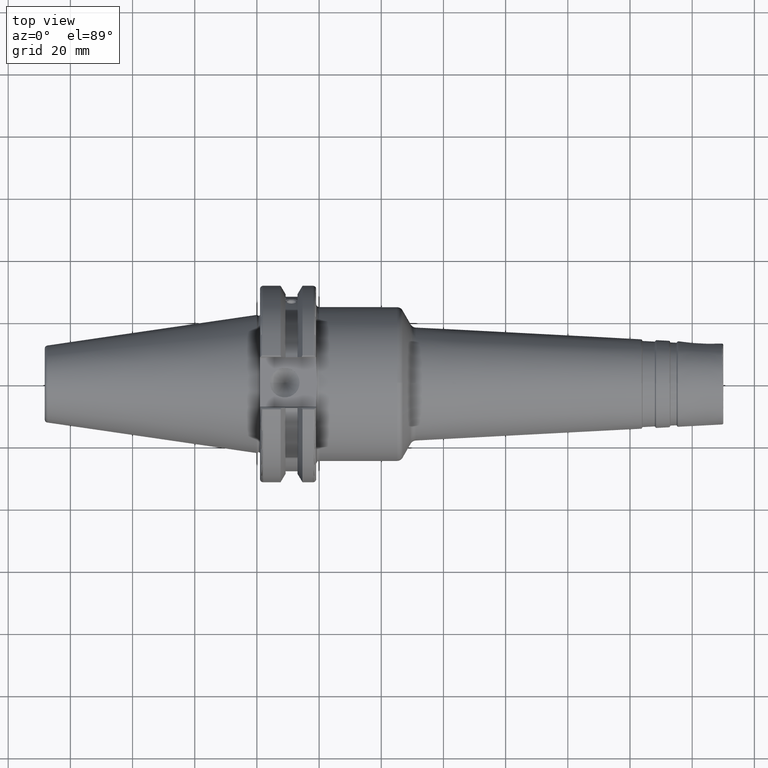
[diagram: clean part render]
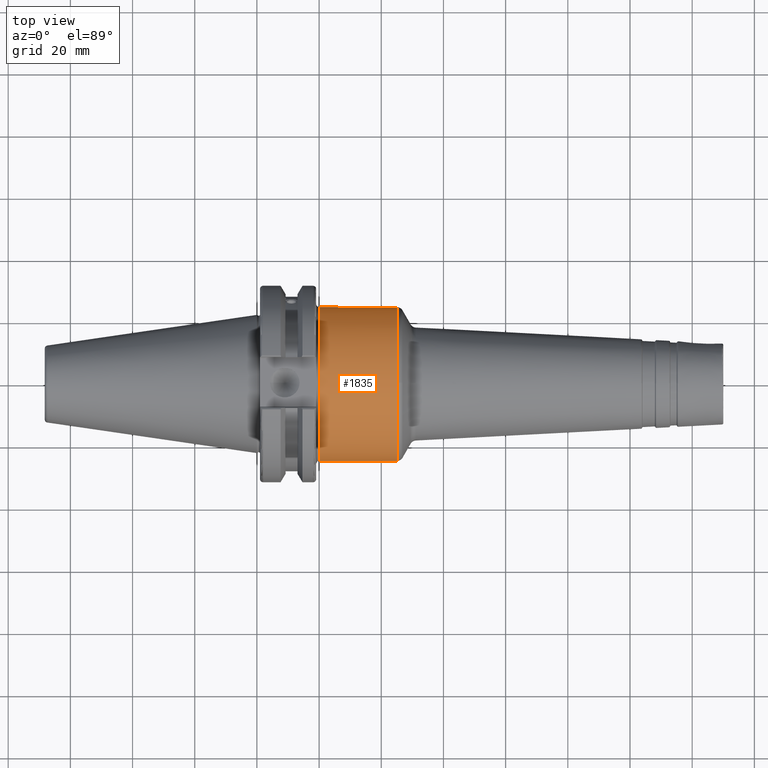
[diagram: same view with one face highlighted and labeled with its STEP entity id]
A machine part, top view. The second image highlights one B-rep face of the part: STEP entity #1835.
In plain terms, the highlighted cylindrical surface (bore or boss wall) has radius 24.75 mm, axis along (1, 0, 0).
Its self-contained STEP definition (entity closure, byte-faithful):
#145=B_SPLINE_CURVE_WITH_KNOTS('',3,(#2913,#2914,#2915,#2916,#2917,#2918,
#2919,#2920,#2921,#2922,#2923,#2924,#2925,#2926,#2927,#2928,#2929,#2930),
 .UNSPECIFIED.,.F.,.F.,(4,2,2,2,2,2,2,2,4),(-2.48845986202559,-2.17733241913027,
-1.86620497623495,-1.55521745362387,-1.24422993101279,-0.933242408401712,
-0.622254885790633,-0.311127442895316,0.),.UNSPECIFIED.);
#183=FACE_OUTER_BOUND('',#292,.T.);
#292=EDGE_LOOP('',(#1243,#1244,#1245,#1246,#1247,#1248,#1249));
#413=LINE('',#2941,#511);
#511=VECTOR('',#2250,24.75);
#610=CIRCLE('',#1974,24.75);
#611=CIRCLE('',#1975,24.75);
#612=CIRCLE('',#1976,24.75);
#613=CIRCLE('',#1977,24.75);
#738=VERTEX_POINT('',#2911);
#739=VERTEX_POINT('',#2912);
#742=VERTEX_POINT('',#2937);
#743=VERTEX_POINT('',#2938);
#744=VERTEX_POINT('',#2940);
#936=EDGE_CURVE('',#738,#739,#145,.T.);
#940=EDGE_CURVE('',#742,#743,#610,.T.);
#941=EDGE_CURVE('',#742,#744,#413,.T.);
#942=EDGE_CURVE('',#738,#744,#611,.T.);
#943=EDGE_CURVE('',#744,#739,#612,.T.);
#944=EDGE_CURVE('',#743,#742,#613,.T.);
#1243=ORIENTED_EDGE('',*,*,#940,.F.);
#1244=ORIENTED_EDGE('',*,*,#941,.T.);
#1245=ORIENTED_EDGE('',*,*,#942,.F.);
#1246=ORIENTED_EDGE('',*,*,#936,.T.);
#1247=ORIENTED_EDGE('',*,*,#943,.F.);
#1248=ORIENTED_EDGE('',*,*,#941,.F.);
#1249=ORIENTED_EDGE('',*,*,#944,.F.);
#1803=CYLINDRICAL_SURFACE('',#1973,24.75);
#1835=ADVANCED_FACE('',(#183),#1803,.T.);
#1973=AXIS2_PLACEMENT_3D('',#2936,#2246,#2247);
#1974=AXIS2_PLACEMENT_3D('',#2939,#2248,#2249);
#1975=AXIS2_PLACEMENT_3D('',#2942,#2251,#2252);
#1976=AXIS2_PLACEMENT_3D('',#2943,#2253,#2254);
#1977=AXIS2_PLACEMENT_3D('',#2944,#2255,#2256);
#2246=DIRECTION('center_axis',(1.,0.,0.));
#2247=DIRECTION('ref_axis',(0.,1.,0.));
#2248=DIRECTION('center_axis',(1.,0.,0.));
#2249=DIRECTION('ref_axis',(0.,-1.,1.83697019872103E-16));
#2250=DIRECTION('',(-1.,0.,0.));
#2251=DIRECTION('center_axis',(-1.,0.,0.));
#2252=DIRECTION('ref_axis',(0.,6.12323399573677E-17,1.));
#2253=DIRECTION('center_axis',(-1.,0.,0.));
#2254=DIRECTION('ref_axis',(0.,6.12323399573677E-17,1.));
#2255=DIRECTION('center_axis',(1.,0.,0.));
#2256=DIRECTION('ref_axis',(0.,-1.,1.83697019872103E-16));
#2911=CARTESIAN_POINT('',(20.05,-8.19,-23.3556502799644));
#2912=CARTESIAN_POINT('',(20.05,8.18999999999999,-23.3556502799644));
#2913=CARTESIAN_POINT('Ctrl Pts',(20.05,-8.19,-23.3556502799644));
#2914=CARTESIAN_POINT('Ctrl Pts',(21.0870914763177,-8.19,-23.3556502799644));
#2915=CARTESIAN_POINT('Ctrl Pts',(22.1874172494719,-7.98112852617488,-23.4319820145953));
#2916=CARTESIAN_POINT('Ctrl Pts',(24.2026226557734,-7.14301766428651,-23.7009173446597));
#2917=CARTESIAN_POINT('Ctrl Pts',(25.1182638848105,-6.51414519102515,-23.8889373554493));
#2918=CARTESIAN_POINT('Ctrl Pts',(26.563820070037,-5.06858900579863,-24.2368381566145));
#2919=CARTESIAN_POINT('Ctrl Pts',(27.1929429534371,-4.15281808103606,-24.420258379043));
#2920=CARTESIAN_POINT('Ctrl Pts',(28.0312404144778,-2.13713243178097,-24.6784841969774));
#2921=CARTESIAN_POINT('Ctrl Pts',(28.24,-1.03662507537027,-24.75));
#2922=CARTESIAN_POINT('Ctrl Pts',(28.24,1.03662507537027,-24.75));
#2923=CARTESIAN_POINT('Ctrl Pts',(28.0312404144778,2.13713243178098,-24.6784841969774));
#2924=CARTESIAN_POINT('Ctrl Pts',(27.1929429534371,4.15281808103607,-24.420258379043));
#2925=CARTESIAN_POINT('Ctrl Pts',(26.563820070037,5.06858900579863,-24.2368381566145));
#2926=CARTESIAN_POINT('Ctrl Pts',(25.1182638848105,6.51414519102515,-23.8889373554493));
#2927=CARTESIAN_POINT('Ctrl Pts',(24.2026226557734,7.14301766428652,-23.7009173446597));
#2928=CARTESIAN_POINT('Ctrl Pts',(22.1874172494719,7.98112852617489,-23.4319820145953));
#2929=CARTESIAN_POINT('Ctrl Pts',(21.0870914763177,8.19,-23.3556502799644));
#2930=CARTESIAN_POINT('Ctrl Pts',(20.05,8.19,-23.3556502799644));
#2936=CARTESIAN_POINT('Origin',(32.6459494423457,0.,0.));
#2937=CARTESIAN_POINT('',(45.0871983463121,-24.75,-3.0310008278897E-15));
#2938=CARTESIAN_POINT('',(45.0871983463121,-3.0310008278897E-15,24.75));
#2939=CARTESIAN_POINT('Origin',(45.0871983463121,0.,0.));
#2940=CARTESIAN_POINT('',(20.05,-24.75,-3.0310008278897E-15));
#2941=CARTESIAN_POINT('',(32.6459494423457,-24.75,-3.0310008278897E-15));
#2942=CARTESIAN_POINT('Origin',(20.05,0.,0.));
#2943=CARTESIAN_POINT('Origin',(20.05,0.,0.));
#2944=CARTESIAN_POINT('Origin',(45.0871983463121,0.,0.));